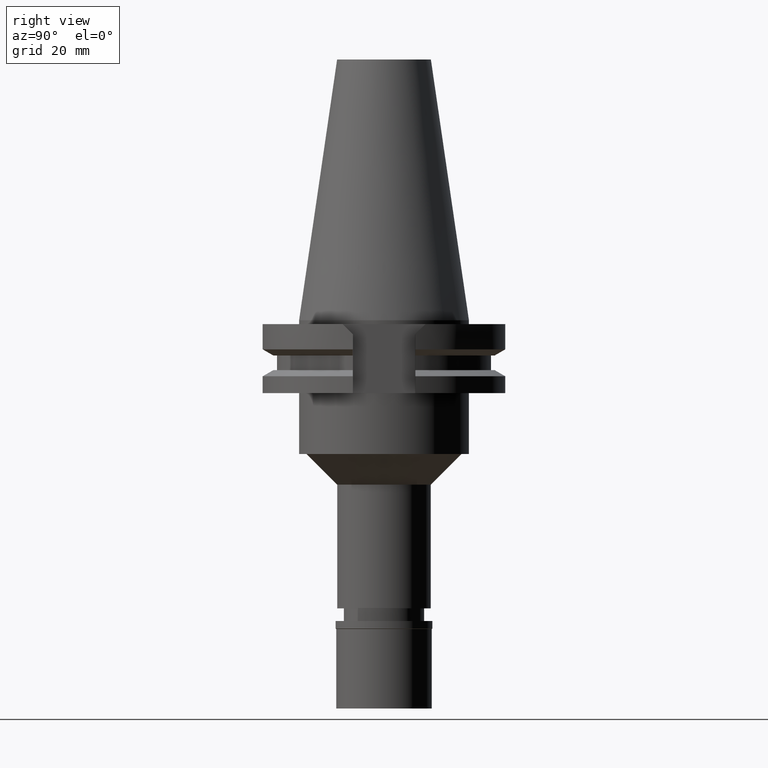
[diagram: clean part render]
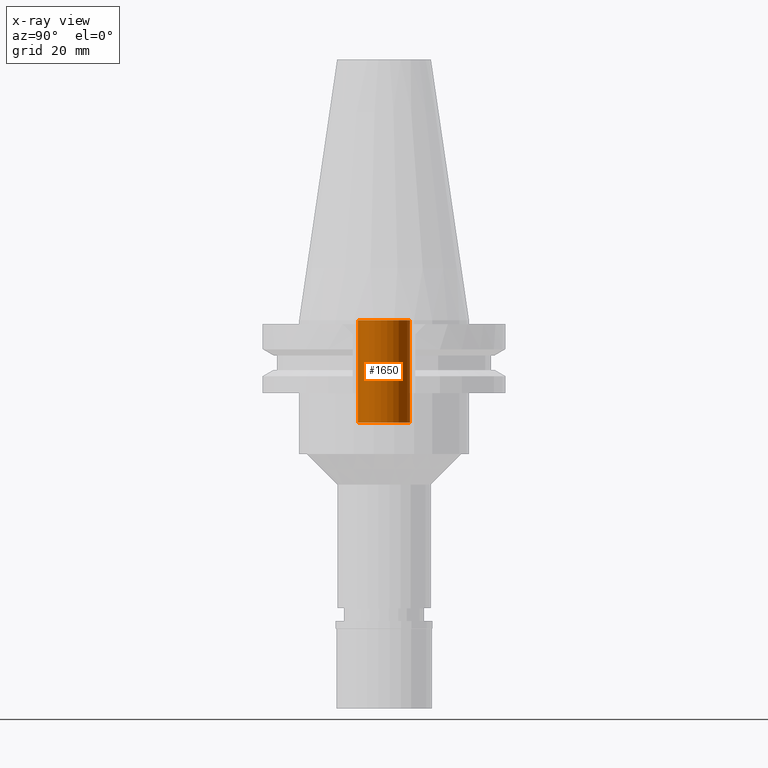
[diagram: x-ray — body ghosted, one internal face saturated and labeled with its STEP entity id]
A machine part, right view, then the same camera in x-ray: the body is ghosted and one INTERNAL B-rep face — a face not visible from any outside direction — is saturated and labeled: STEP entity #1650.
In plain terms, the highlighted cylindrical surface (edge-blend (fillet) strip) has radius 6.8 mm, axis along (0, 0, -1).
Its self-contained STEP definition (entity closure, byte-faithful):
#13 = CARTESIAN_POINT ( 'NONE',  ( 0.0000000000000000000, -6.799999999999999822, 0.0000000000000000000 ) ) ;
#119 = EDGE_CURVE ( 'NONE', #2821, #1370, #1583, .T. ) ;
#147 = AXIS2_PLACEMENT_3D ( 'NONE', #2212, #1677, #2935 ) ;
#200 = ORIENTED_EDGE ( 'NONE', *, *, #392, .T. ) ;
#205 = DIRECTION ( 'NONE',  ( 0.0000000000000000000, 0.0000000000000000000, 1.000000000000000000 ) ) ;
#206 = CIRCLE ( 'NONE', #1227, 6.799999999999999822 ) ;
#392 = EDGE_CURVE ( 'NONE', #2821, #1396, #2019, .T. ) ;
#394 = DIRECTION ( 'NONE',  ( 0.0000000000000000000, -1.000000000000000000, 0.0000000000000000000 ) ) ;
#660 = VERTEX_POINT ( 'NONE', #13 ) ;
#1074 = VECTOR ( 'NONE', #205, 1000.000000000000000 ) ;
#1217 = AXIS2_PLACEMENT_3D ( 'NONE', #2192, #1451, #1671 ) ;
#1227 = AXIS2_PLACEMENT_3D ( 'NONE', #2982, #3208, #394 ) ;
#1307 = CARTESIAN_POINT ( 'NONE',  ( 0.0000000000000000000, -6.799999999999999822, -26.75000000000000000 ) ) ;
#1370 = VERTEX_POINT ( 'NONE', #2102 ) ;
#1396 = VERTEX_POINT ( 'NONE', #1307 ) ;
#1423 = CYLINDRICAL_SURFACE ( 'NONE', #147, 6.799999999999999822 ) ;
#1451 = DIRECTION ( 'NONE',  ( 0.0000000000000000000, 0.0000000000000000000, -1.000000000000000000 ) ) ;
#1583 = LINE ( 'NONE', #2341, #2706 ) ;
#1590 = EDGE_CURVE ( 'NONE', #660, #1370, #206, .T. ) ;
#1650 = ADVANCED_FACE ( 'NONE', ( #1928 ), #1423, .F. ) ;
#1671 = DIRECTION ( 'NONE',  ( 0.0000000000000000000, 1.000000000000000000, 0.0000000000000000000 ) ) ;
#1677 = DIRECTION ( 'NONE',  ( 0.0000000000000000000, 0.0000000000000000000, -1.000000000000000000 ) ) ;
#1845 = ORIENTED_EDGE ( 'NONE', *, *, #2126, .T. ) ;
#1876 = ORIENTED_EDGE ( 'NONE', *, *, #119, .F. ) ;
#1928 = FACE_OUTER_BOUND ( 'NONE', #2655, .T. ) ;
#2019 = CIRCLE ( 'NONE', #1217, 6.799999999999999822 ) ;
#2102 = CARTESIAN_POINT ( 'NONE',  ( 0.0000000000000000000, 6.799999999999999822, 0.0000000000000000000 ) ) ;
#2126 = EDGE_CURVE ( 'NONE', #1396, #660, #2505, .T. ) ;
#2192 = CARTESIAN_POINT ( 'NONE',  ( 0.0000000000000000000, 0.0000000000000000000, -26.75000000000000000 ) ) ;
#2207 = CARTESIAN_POINT ( 'NONE',  ( 0.0000000000000000000, -6.799999999999999822, -26.75000000000000000 ) ) ;
#2212 = CARTESIAN_POINT ( 'NONE',  ( 0.0000000000000000000, 0.0000000000000000000, 76.29250000000000398 ) ) ;
#2327 = DIRECTION ( 'NONE',  ( 0.0000000000000000000, 0.0000000000000000000, 1.000000000000000000 ) ) ;
#2329 = ORIENTED_EDGE ( 'NONE', *, *, #1590, .T. ) ;
#2341 = CARTESIAN_POINT ( 'NONE',  ( 0.0000000000000000000, 6.799999999999999822, -26.75000000000000000 ) ) ;
#2505 = LINE ( 'NONE', #2207, #1074 ) ;
#2655 = EDGE_LOOP ( 'NONE', ( #200, #1845, #2329, #1876 ) ) ;
#2706 = VECTOR ( 'NONE', #2327, 1000.000000000000000 ) ;
#2807 = CARTESIAN_POINT ( 'NONE',  ( 0.0000000000000000000, 6.799999999999999822, -26.75000000000000000 ) ) ;
#2821 = VERTEX_POINT ( 'NONE', #2807 ) ;
#2935 = DIRECTION ( 'NONE',  ( 0.0000000000000000000, -1.000000000000000000, 0.0000000000000000000 ) ) ;
#2982 = CARTESIAN_POINT ( 'NONE',  ( 0.0000000000000000000, 0.0000000000000000000, 0.0000000000000000000 ) ) ;
#3208 = DIRECTION ( 'NONE',  ( 0.0000000000000000000, 0.0000000000000000000, 1.000000000000000000 ) ) ;